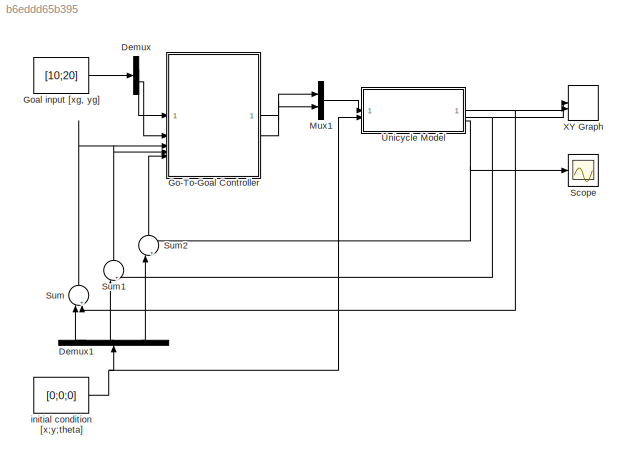
MODEL slx_b6eddd65b395
KIND model
CONFIG AbsTol = auto
CONFIG EnableMultiTasking = off
CONFIG FixedStep = auto
CONFIG MaxStep = auto
CONFIG MinStep = auto
CONFIG RelTol = 1e-3
CONFIG SampleTimeConstraint = Unconstrained
CONFIG SolverName = VariableStepAuto
CONFIG StartTime = 0.0
CONFIG StopTime = 50.0
BLOCK [Demux] Demux
  Outputs = 2
BLOCK [Demux] Demux1
  NameLocation = right
  Outputs = 3
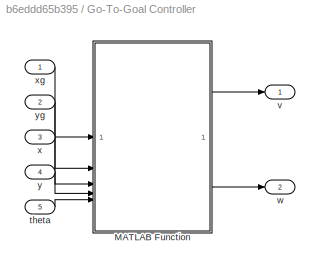
BLOCK [SubSystem] Go-To-Goal Controller
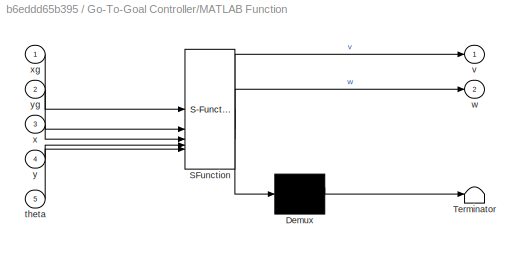
BLOCK [SubSystem] Go-To-Goal Controller/MATLAB Function
  ErrorFcn = Stateflow.Translate.translate
  PermitHierarchicalResolution = ExplicitOnly
  SFBlockType = MATLAB Function
  TreatAsAtomicUnit = on
BLOCK [Demux] Go-To-Goal Controller/MATLAB Function/ Demux 
  Outputs = 1
BLOCK [S-Function] Go-To-Goal Controller/MATLAB Function/ SFunction 
  EnableBusSupport = on
  FunctionName = sf_sfun
  PortCounts = [5 3]
  SFcnIsStateOwnerBlock = off
  SFunctionDeploymentMode = off
  Tag = Stateflow S-Function 2
BLOCK [Terminator] Go-To-Goal Controller/MATLAB Function/ Terminator 
BLOCK [Inport] Go-To-Goal Controller/MATLAB Function/theta
  Port = 5
BLOCK [Outport] Go-To-Goal Controller/MATLAB Function/v
BLOCK [Outport] Go-To-Goal Controller/MATLAB Function/w
  Port = 2
BLOCK [Inport] Go-To-Goal Controller/MATLAB Function/x
  Port = 3
BLOCK [Inport] Go-To-Goal Controller/MATLAB Function/xg
BLOCK [Inport] Go-To-Goal Controller/MATLAB Function/y
  Port = 4
BLOCK [Inport] Go-To-Goal Controller/MATLAB Function/yg
  Port = 2
BLOCK [Inport] Go-To-Goal Controller/theta
  Port = 5
BLOCK [Outport] Go-To-Goal Controller/v
BLOCK [Outport] Go-To-Goal Controller/w
  Port = 2
BLOCK [Inport] Go-To-Goal Controller/x
  Port = 3
BLOCK [Inport] Go-To-Goal Controller/xg
BLOCK [Inport] Go-To-Goal Controller/y
  Port = 4
BLOCK [Inport] Go-To-Goal Controller/yg
  Port = 2
BLOCK [Constant] Goal input [xg, yg]
  Value = [10;20]
BLOCK [Mux] Mux1
  DisplayOption = bar
  Inputs = 2
BLOCK [Scope] Scope
  Floating = off
  NumInputPorts = 1
  ScopeSpecificationString = Simulink.scopes.TimeScopeBlockCfg('CurrentConfiguration', extmgr.ConfigurationSet(extmgr.Configuration('Core','General UI',true),extmgr.Configuration('Core','Source UI',true),extmgr.Configuration('Sources','WiredSimulink',true),extmgr.Configuration('Visuals','Time Domain',true),extmgr.Configuration('Tools','Plot Navigation',true),extmgr.Configuration('Tools','Measurements',true)),'Version','2023b'...<+1ch>
BLOCK [Sum] Sum
  Inputs = |++
  NameLocation = right
BLOCK [Sum] Sum1
  Inputs = |++
  NameLocation = right
BLOCK [Sum] Sum2
  Inputs = |++
  NameLocation = right
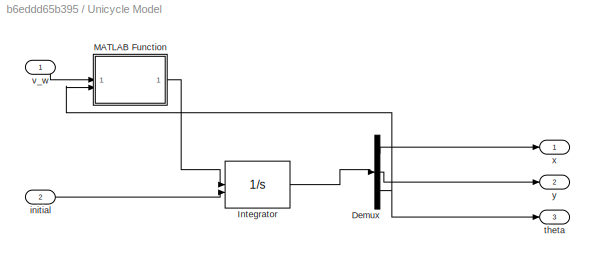
BLOCK [SubSystem] Unicycle Model
BLOCK [Demux] Unicycle Model/Demux
  Outputs = 3
BLOCK [Integrator] Unicycle Model/Integrator
  InitialConditionSource = external
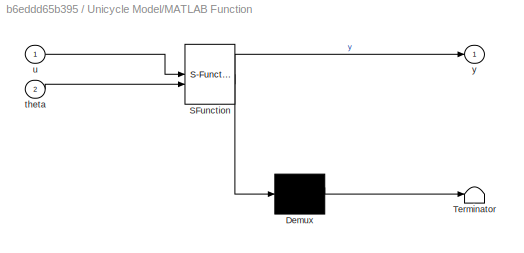
BLOCK [SubSystem] Unicycle Model/MATLAB Function
  ErrorFcn = Stateflow.Translate.translate
  PermitHierarchicalResolution = ExplicitOnly
  SFBlockType = MATLAB Function
  TreatAsAtomicUnit = on
BLOCK [Demux] Unicycle Model/MATLAB Function/ Demux 
  Outputs = 1
BLOCK [S-Function] Unicycle Model/MATLAB Function/ SFunction 
  EnableBusSupport = on
  FunctionName = sf_sfun
  PortCounts = [2 2]
  SFcnIsStateOwnerBlock = off
  SFunctionDeploymentMode = off
  Tag = Stateflow S-Function 1
BLOCK [Terminator] Unicycle Model/MATLAB Function/ Terminator 
BLOCK [Inport] Unicycle Model/MATLAB Function/theta
  Port = 2
BLOCK [Inport] Unicycle Model/MATLAB Function/u
BLOCK [Outport] Unicycle Model/MATLAB Function/y
BLOCK [Inport] Unicycle Model/initial
  Port = 2
BLOCK [Outport] Unicycle Model/theta
  Port = 3
BLOCK [Inport] Unicycle Model/v_w
BLOCK [Outport] Unicycle Model/x
BLOCK [Outport] Unicycle Model/y
  Port = 2
BLOCK [Record] XY Graph
  CompatibilityTag = XY
  FileSettingsInternal = {"entries":[{"content":{"excelSettings":{"content":{},"type":"Streamout.ExcelSettings"}},"type":"Streamout.FileSettingStorage","uuid":""}],"packageUris":["http:\/\/schema.mathworks.com\/mf0\/streamout_blocks\/R2020a"],"version":"1.0"}
  Layout = [1 1]
  SignalsInternal = {"entries":[{"content":{"signals":[{"content":{"blockPath":[],"dimensions":[1],"domain":"","lineColor":"#a2142f","plots":[1],"port":1,"signalID":47,"signalName":"XY Graph:1"},"type":"RecordBlkView.Signal","uuid":""},{"content":{"blockPath":[],"dimensions":[1],"domain":"","lineColor":"#139fff","plots":[1],"port":2,"signalID":50,"signalName":"XY Graph:2"},"type":"RecordBlkView.Signal","uuid":""}]},"...<+142ch>
  VisualizationBindings = {"xyplotplugin":{"info":[{"series":[{"bindingParametersList":[{"parameter":"X-Axis","signalID":47,"signalName":"XY Graph:1"},{"parameter":"Y-Axis","signalID":50,"signalName":"XY Graph:2"}],"seriesID":8183}],"subplotID":1}]}}
  st = -1
BLOCK [Constant] initial condition [x;y;theta]
  Value = [0;0;0]
LINE Demux1:1 -> Sum:1
LINE Demux1:2 -> Sum1:1
LINE Demux1:3 -> Sum2:1
LINE Demux:1 -> Go-To-Goal Controller:1
LINE Demux:2 -> Go-To-Goal Controller:2
LINE Go-To-Goal Controller/MATLAB Function:1 -> Go-To-Goal Controller/v:1
LINE Go-To-Goal Controller/MATLAB Function:2 -> Go-To-Goal Controller/w:1
LINE Go-To-Goal Controller/theta:1 -> Go-To-Goal Controller/MATLAB Function:5
LINE Go-To-Goal Controller/x:1 -> Go-To-Goal Controller/MATLAB Function:3
LINE Go-To-Goal Controller/xg:1 -> Go-To-Goal Controller/MATLAB Function:1
LINE Go-To-Goal Controller/y:1 -> Go-To-Goal Controller/MATLAB Function:4
LINE Go-To-Goal Controller/yg:1 -> Go-To-Goal Controller/MATLAB Function:2
LINE Go-To-Goal Controller:1 -> Mux1:1
LINE Go-To-Goal Controller:2 -> Mux1:2
LINE Goal input [xg, yg]:1 -> Demux:1
LINE Mux1:1 -> Unicycle Model:1
LINE Sum1:1 -> Go-To-Goal Controller:4
LINE Sum2:1 -> Go-To-Goal Controller:5
LINE Sum:1 -> Go-To-Goal Controller:3
LINE Unicycle Model/Demux:1 -> Unicycle Model/x:1
LINE Unicycle Model/Demux:2 -> Unicycle Model/y:1
NET Unicycle Model/Demux:3 -> Unicycle Model/MATLAB Function:2, Unicycle Model/theta:1
LINE Unicycle Model/Integrator:1 -> Unicycle Model/Demux:1
LINE Unicycle Model/MATLAB Function:1 -> Unicycle Model/Integrator:1
LINE Unicycle Model/initial:1 -> Unicycle Model/Integrator:2
LINE Unicycle Model/v_w:1 -> Unicycle Model/MATLAB Function:1
NET Unicycle Model:1 -> Sum:2, XY Graph:1
NET Unicycle Model:2 -> Sum1:2, XY Graph:2
NET Unicycle Model:3 -> Scope:1, Sum2:2
NET initial condition [x;y;theta]:1 -> Demux1:1, Unicycle Model:2
note: NET lines group one-source signal fan-out (src -> all destinations, sorted); 1:1 wires keep LINE
CHART Unicycle Model/MATLAB Function states=1 transitions=1
  STATE_LABEL 'eML_blk_kernel()'
  STATE_LABEL 'SCRIPT:\nfunction y = fcn(u, theta)\n\n\nv = u(1);\nw = u(2);\n\ny = [v*cos(theta); v*sin(theta); w];\n'
CHART Go-To-Goal Controller/MATLAB Function states=1 transitions=1
  STATE_LABEL 'eML_blk_kernel()'
  STATE_LABEL 'SCRIPT:\nfunction [v,w]= fcn(xg,yg,x,y,theta)\n\nKp = 1.0;\nKh = 1.0;\n\ndelta_x = xg - x;\ndelta_y = yg - y;\ntheta_g = atan2(delta_y, delta_x);\ndelta_theta = theta_g - theta;\ndelta_theta = atan2(sin(delta_theta), cos(delta_theta)); %[-π, π]\nuzaklik = sqrt(delta_x^2 + delta_y^2);\n\n% Hız ve dönüş açısı hesaplama\nvt = Kp * uzaklik;\nwt = Kh * delta_theta;\n\n% Hızı sınırla\nif vt > 1\n    vt = 1;\nend\nif wt > pi...<+38ch>'
CHART  states=0 transitions=0
CHART  states=0 transitions=0
